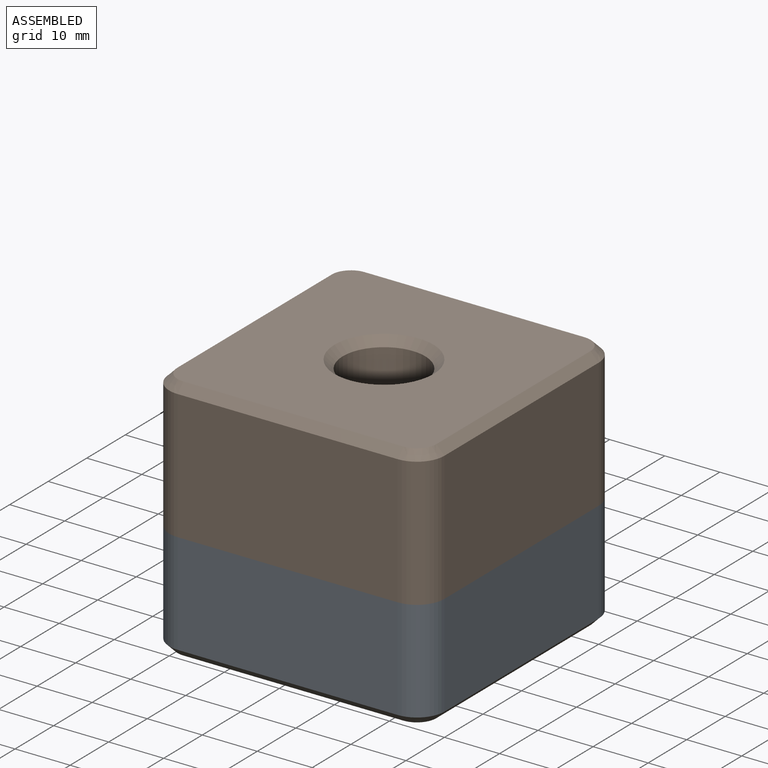
[diagram: assembled view]
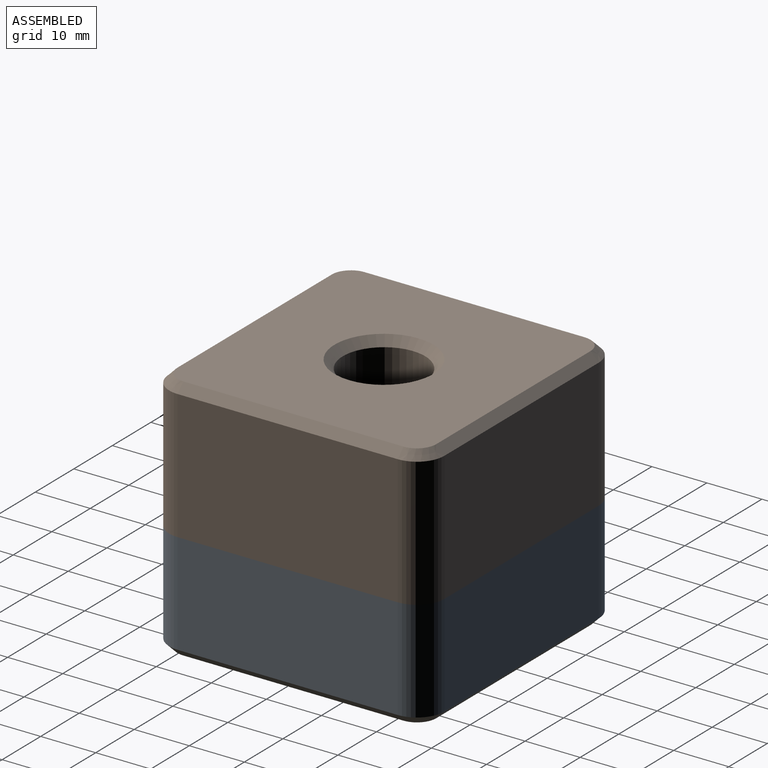
[diagram: assembled view, second angle]
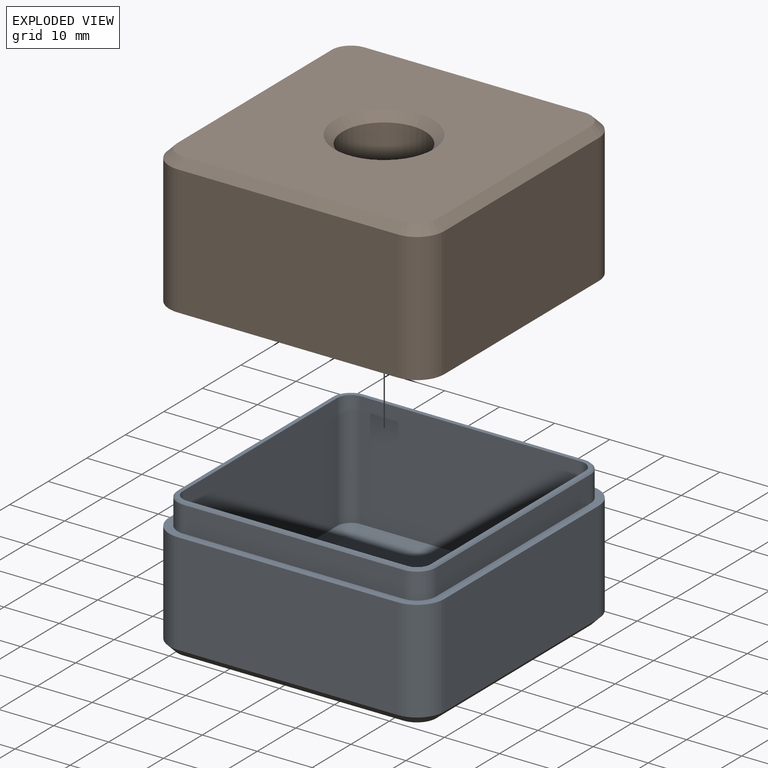
[diagram: exploded view]
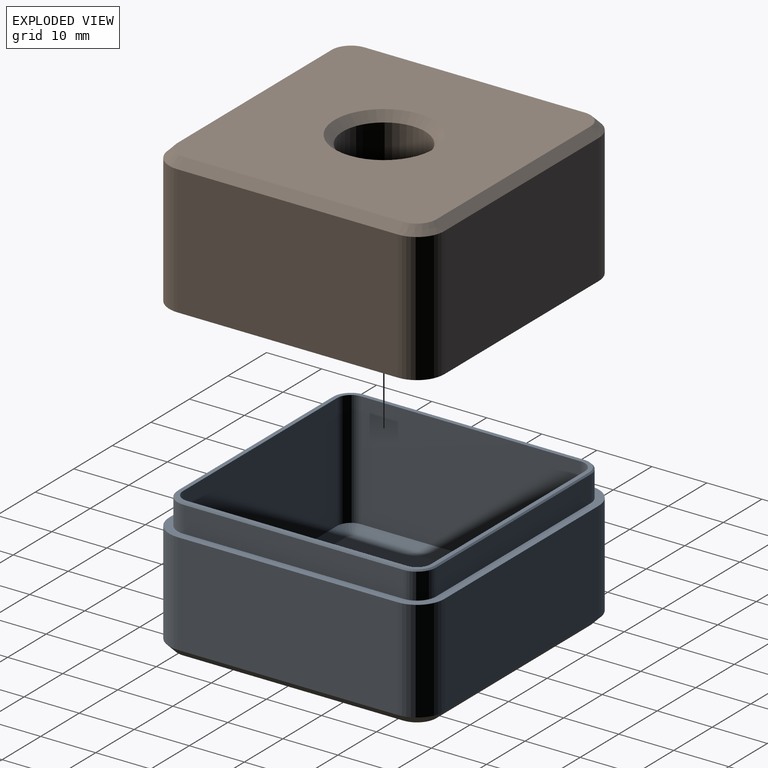
[diagram: exploded view, second angle]
ASSEMBLY  parts=2 mates=2
PART A: 52 faces, bbox 50x50x25 mm
  f0: plane 50x50mm, normal (0,0,1), area 280.1mm2, adj f1,f2,f3,f4,f5,f6,f7,f8
  f1: plane 40x18.5mm, normal (1,0,0), area 740mm2, adj f0,f2,f8,f36
  f2: cylinder r=5mm len=18.5mm, axis (0,0,-1), area 145.3mm2, adj f0,f1,f3,f38
  f3: plane 40x18.5mm, normal (0,1,0), area 740mm2, adj f0,f2,f4,f40
  f4: cylinder r=5mm len=18.5mm, axis (0,0,-1), area 145.3mm2, adj f0,f3,f5,f42
  f5: plane 40x18.5mm, normal (-1,0,0), area 740mm2, adj f0,f4,f6,f43
  f6: cylinder r=5mm len=18.5mm, axis (0,0,-1), area 145.3mm2, adj f0,f5,f7,f41
  f7: plane 40x18.5mm, normal (0,-1,0), area 740mm2, adj f0,f6,f8,f39
  f8: cylinder r=5mm len=18.5mm, axis (0,0,-1), area 145.3mm2, adj f0,f1,f7,f37
  f9: plane 47x47mm, normal (0,0,-1), area 2198.5mm2, adj f36,f37,f38,f39,f40,f41,f42,f43
  f10: plane 40x4.75mm, normal (0,1,0), area 190mm2, adj f0,f11,f17,f32
  f11: cylinder r=3.5mm len=4.75mm, axis (0,0,-1), area 26.1mm2, adj f0,f10,f12,f30
  f12: plane 40x4.75mm, normal (-1,0,0), area 190mm2, adj f0,f11,f13,f28
  f13: cylinder r=3.5mm len=4.75mm, axis (0,0,-1), area 26.1mm2, adj f0,f12,f14,f29
  f14: plane 40x4.75mm, normal (0,-1,0), area 190mm2, adj f0,f13,f15,f31
  f15: cylinder r=3.5mm len=4.75mm, axis (0,0,-1), area 26.1mm2, adj f0,f14,f16,f33
  f16: plane 40x4.75mm, normal (1,0,0), area 190mm2, adj f0,f15,f17,f35
  f17: cylinder r=3.5mm len=4.75mm, axis (0,0,-1), area 26.1mm2, adj f0,f10,f16,f34
  f18: plane 46.5x46.5mm, normal (0,0,1), area 133.5mm2, adj f20,f21,f22,f23,f24,f25,f26,f27
  f19: plane 42x42mm, normal (0,0,1), area 1763.1mm2, adj f44,f45,f46,f47,f48,f49,f50,f51
  f20: cylinder r=2.5mm len=21mm, axis (0,0,-1), area 82.5mm2, adj f18,f21,f27,f46
  f21: plane 40x21mm, normal (0,-1,0), area 840mm2, adj f18,f20,f22,f44
  f22: cylinder r=2.5mm len=21mm, axis (0,0,-1), area 82.5mm2, adj f18,f21,f23,f45
  f23: plane 40x21mm, normal (1,0,0), area 840mm2, adj f18,f22,f24,f47
  f24: cylinder r=2.5mm len=21mm, axis (0,0,-1), area 82.5mm2, adj f18,f23,f25,f49
  f25: plane 40x21mm, normal (0,1,0), area 840mm2, adj f18,f24,f26,f51
  f26: cylinder r=2.5mm len=21mm, axis (0,0,-1), area 82.5mm2, adj f18,f25,f27,f50
  f27: plane 40x21mm, normal (-1,0,0), area 840mm2, adj f18,f20,f26,f48
  f28: plane 40x0.25mm, normal (-0.71,0,0.71), area 14.1mm2, adj f12,f18,f29,f30
  f29: cone r=3.25mm half-angle=45deg, axis (0,0,-1), area 1.9mm2, adj f13,f18,f28,f31
  f30: cone r=3.25mm half-angle=45deg, axis (0,0,-1), area 1.9mm2, adj f11,f18,f28,f32
  f31: plane 40x0.25mm, normal (0,-0.71,0.71), area 14.1mm2, adj f14,f18,f29,f33
  f32: plane 40x0.25mm, normal (0,0.71,0.71), area 14.1mm2, adj f10,f18,f30,f34
  f33: cone r=3.25mm half-angle=45deg, axis (0,0,-1), area 1.9mm2, adj f15,f18,f31,f35
  f34: cone r=3.25mm half-angle=45deg, axis (0,0,-1), area 1.9mm2, adj f17,f18,f32,f35
  f35: plane 40x0.25mm, normal (0.71,0,0.71), area 14.1mm2, adj f16,f18,f33,f34
  f36: plane 40x1.5mm, normal (0.71,0,-0.71), area 84.9mm2, adj f1,f9,f37,f38
  f37: cone r=5mm half-angle=45deg, axis (0,0,1), area 14.2mm2, adj f8,f9,f36,f39
  f38: cone r=5mm half-angle=45deg, axis (0,0,1), area 14.2mm2, adj f2,f9,f36,f40
  f39: plane 40x1.5mm, normal (0,-0.71,-0.71), area 84.9mm2, adj f7,f9,f37,f41
  f40: plane 40x1.5mm, normal (0,0.71,-0.71), area 84.9mm2, adj f3,f9,f38,f42
  f41: cone r=5mm half-angle=45deg, axis (0,0,1), area 14.2mm2, adj f6,f9,f39,f43
  f42: cone r=5mm half-angle=45deg, axis (0,0,1), area 14.2mm2, adj f4,f9,f40,f43
  f43: plane 40x1.5mm, normal (-0.71,0,-0.71), area 84.9mm2, adj f5,f9,f41,f42
  f44: plane 40x1.5mm, normal (0,-0.71,0.71), area 84.9mm2, adj f19,f21,f45,f46
  f45: cone r=1mm half-angle=45deg, axis (0,0,1), area 5.8mm2, adj f19,f22,f44,f47
  f46: cone r=1mm half-angle=45deg, axis (0,0,1), area 5.8mm2, adj f19,f20,f44,f48
  f47: plane 40x1.5mm, normal (0.71,0,0.71), area 84.9mm2, adj f19,f23,f45,f49
  f48: plane 40x1.5mm, normal (-0.71,0,0.71), area 84.9mm2, adj f19,f27,f46,f50
  f49: cone r=1mm half-angle=45deg, axis (0,0,1), area 5.8mm2, adj f19,f24,f47,f51
  f50: cone r=1mm half-angle=45deg, axis (0,0,1), area 5.8mm2, adj f19,f26,f48,f51
  f51: plane 40x1.5mm, normal (0,0.71,0.71), area 84.9mm2, adj f19,f25,f49,f50
PART B: 57 faces, bbox 50x50x25 mm
  f0: plane 20x20mm, normal (0,0,-1), area 137.4mm2, adj f8,f19
  f1: plane 40x23.5mm, normal (1,0,0), area 940mm2, adj f2,f9,f30,f46
  f2: cylinder r=5mm len=23.5mm, axis (0,0,-1), area 184.6mm2, adj f1,f3,f30,f45
  f3: plane 40x23.5mm, normal (0,1,0), area 940mm2, adj f2,f4,f30,f43
  f4: cylinder r=5mm len=23.5mm, axis (0,0,-1), area 184.6mm2, adj f3,f5,f30,f41
  f5: plane 40x23.5mm, normal (-1,0,0), area 940mm2, adj f4,f6,f30,f39
  f6: cylinder r=5mm len=23.5mm, axis (0,0,-1), area 184.6mm2, adj f5,f7,f30,f40
  f7: plane 40x23.5mm, normal (0,-1,0), area 940mm2, adj f6,f9,f30,f42
  f8: cylinder r=7.5mm len=18.5mm, axis (0,0,-1), area 871.8mm2, adj f0,f47
  f9: cylinder r=5mm len=23.5mm, axis (0,0,-1), area 184.6mm2, adj f1,f7,f30,f44
  f10: plane 47x47mm, normal (0,0,1), area 1944mm2, adj f39,f40,f41,f42,f43,f44,f45,f46
  f11: plane 47.5x47.5mm, normal (0,0,-1), area 224.5mm2, adj f12,f13,f14,f15,f16,f17,f18,f20
  f12: plane 40x16mm, normal (-1,0,0), area 640mm2, adj f11,f13,f20,f55
  f13: cylinder r=2.5mm len=16mm, axis (0,0,-1), area 62.8mm2, adj f11,f12,f14,f54
  f14: plane 40x16mm, normal (0,-1,0), area 640mm2, adj f11,f13,f15,f52
  f15: cylinder r=2.5mm len=16mm, axis (0,0,-1), area 62.8mm2, adj f11,f14,f16,f50
  f16: plane 40x16mm, normal (1,0,0), area 640mm2, adj f11,f15,f17,f48
  f17: cylinder r=2.5mm len=16mm, axis (0,0,-1), area 62.8mm2, adj f11,f16,f18,f49
  f18: plane 40x16mm, normal (0,1,0), area 640mm2, adj f11,f17,f20,f51
  f19: cylinder r=10mm len=20mm, axis (0,0,-1), area 1005.3mm2, adj f0,f56
  f20: cylinder r=2.5mm len=16mm, axis (0,0,-1), area 62.8mm2, adj f11,f12,f18,f53
  f21: plane 42x42mm, normal (0,0,-1), area 1347.7mm2, adj f48,f49,f50,f51,f52,f53,f54,f55
  f22: plane 40x4.75mm, normal (0,-1,0), area 190mm2, adj f11,f23,f29,f32
  f23: cylinder r=3.75mm len=4.75mm, axis (0,0,1), area 28mm2, adj f11,f22,f24,f34
  f24: plane 40x4.75mm, normal (1,0,0), area 190mm2, adj f11,f23,f25,f36
  f25: cylinder r=3.75mm len=4.75mm, axis (0,0,1), area 28mm2, adj f11,f24,f26,f38
  f26: plane 40x4.75mm, normal (0,1,0), area 190mm2, adj f11,f25,f27,f37
  f27: cylinder r=3.75mm len=4.75mm, axis (0,0,1), area 28mm2, adj f11,f26,f28,f35
  f28: plane 40x4.75mm, normal (-1,0,0), area 190mm2, adj f11,f27,f29,f33
  f29: cylinder r=3.75mm len=4.75mm, axis (0,0,1), area 28mm2, adj f11,f22,f28,f31
  f30: plane 50x50mm, normal (0,0,-1), area 188.3mm2, adj f1,f2,f3,f4,f5,f6,f7,f9
  f31: cone r=4mm half-angle=45deg, axis (0,0,-1), area 2.2mm2, adj f29,f30,f32,f33
  f32: plane 40x0.25mm, normal (0,-0.71,-0.71), area 14.1mm2, adj f22,f30,f31,f34
  f33: plane 40x0.25mm, normal (-0.71,0,-0.71), area 14.1mm2, adj f28,f30,f31,f35
  f34: cone r=4mm half-angle=45deg, axis (0,0,-1), area 2.2mm2, adj f23,f30,f32,f36
  f35: cone r=4mm half-angle=45deg, axis (0,0,-1), area 2.2mm2, adj f27,f30,f33,f37
  f36: plane 40x0.25mm, normal (0.71,0,-0.71), area 14.1mm2, adj f24,f30,f34,f38
  f37: plane 40x0.25mm, normal (0,0.71,-0.71), area 14.1mm2, adj f26,f30,f35,f38
  f38: cone r=4mm half-angle=45deg, axis (0,0,-1), area 2.2mm2, adj f25,f30,f36,f37
  f39: plane 40x1.5mm, normal (-0.71,0,0.71), area 84.9mm2, adj f5,f10,f40,f41
  f40: cone r=3.5mm half-angle=45deg, axis (0,0,-1), area 14.2mm2, adj f6,f10,f39,f42
  f41: cone r=3.5mm half-angle=45deg, axis (0,0,-1), area 14.2mm2, adj f4,f10,f39,f43
  f42: plane 40x1.5mm, normal (0,-0.71,0.71), area 84.9mm2, adj f7,f10,f40,f44
  f43: plane 40x1.5mm, normal (0,0.71,0.71), area 84.9mm2, adj f3,f10,f41,f45
  f44: cone r=3.5mm half-angle=45deg, axis (0,0,-1), area 14.2mm2, adj f9,f10,f42,f46
  f45: cone r=3.5mm half-angle=45deg, axis (0,0,-1), area 14.2mm2, adj f2,f10,f43,f46
  f46: plane 40x1.5mm, normal (0.71,0,0.71), area 84.9mm2, adj f1,f10,f44,f45
  f47: cone r=7.5mm half-angle=45deg, axis (0,0,1), area 110mm2, adj f8,f10
  f48: plane 40x1.5mm, normal (0.71,0,-0.71), area 84.9mm2, adj f16,f21,f49,f50
  f49: cone r=2.5mm half-angle=45deg, axis (0,0,-1), area 5.8mm2, adj f17,f21,f48,f51
  f50: cone r=2.5mm half-angle=45deg, axis (0,0,-1), area 5.8mm2, adj f15,f21,f48,f52
  f51: plane 40x1.5mm, normal (0,0.71,-0.71), area 84.9mm2, adj f18,f21,f49,f53
  f52: plane 40x1.5mm, normal (0,-0.71,-0.71), area 84.9mm2, adj f14,f21,f50,f54
  f53: cone r=2.5mm half-angle=45deg, axis (0,0,-1), area 5.8mm2, adj f20,f21,f51,f55
  f54: cone r=2.5mm half-angle=45deg, axis (0,0,-1), area 5.8mm2, adj f13,f21,f52,f55
  f55: plane 40x1.5mm, normal (-0.71,0,-0.71), area 84.9mm2, adj f12,f21,f53,f54
  f56: cone r=11.5mm half-angle=45deg, axis (0,0,1), area 143.3mm2, adj f19,f21
PLACE A t=(-21.81,-2.4,-7.21)mm
PLACE B t=(-21.81,-2.4,17.79)mm
MATE fastened B.f8 <-> A.f0  axis (0,0,-1) through (3.19,22.6,12.79)mm
MATE planar B.f1 <-> A.f1  axis (1,0,0) through (28.19,22.6,24.54)mm
